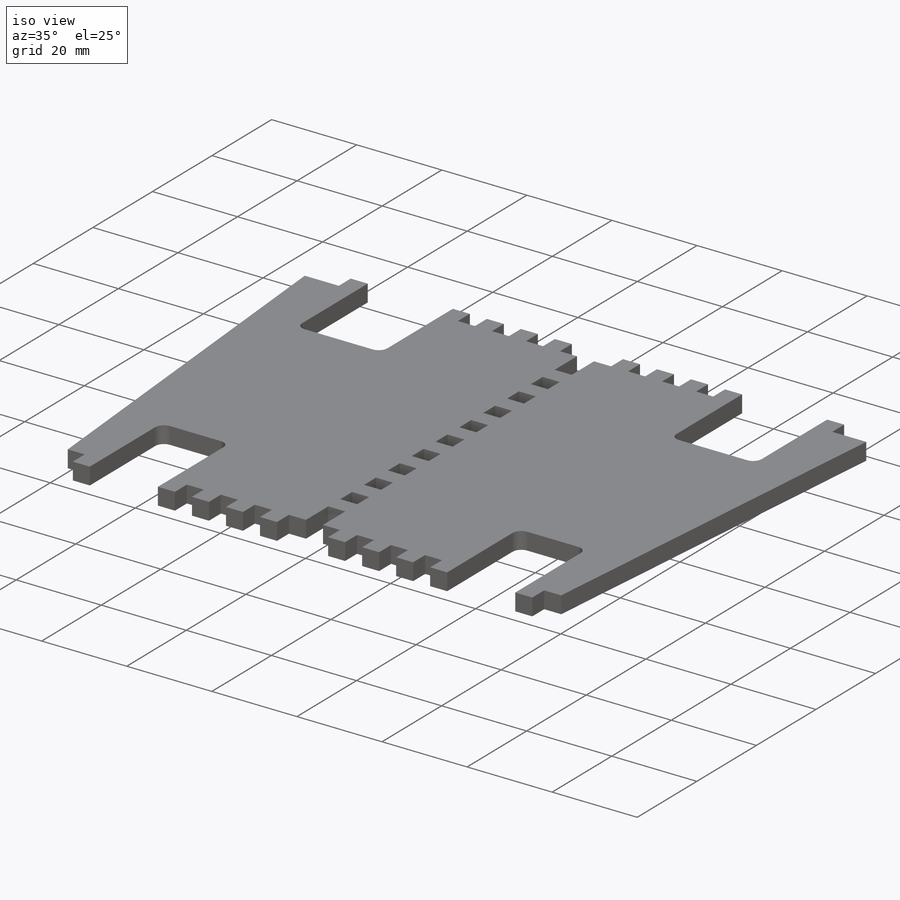
[diagram: iso view]
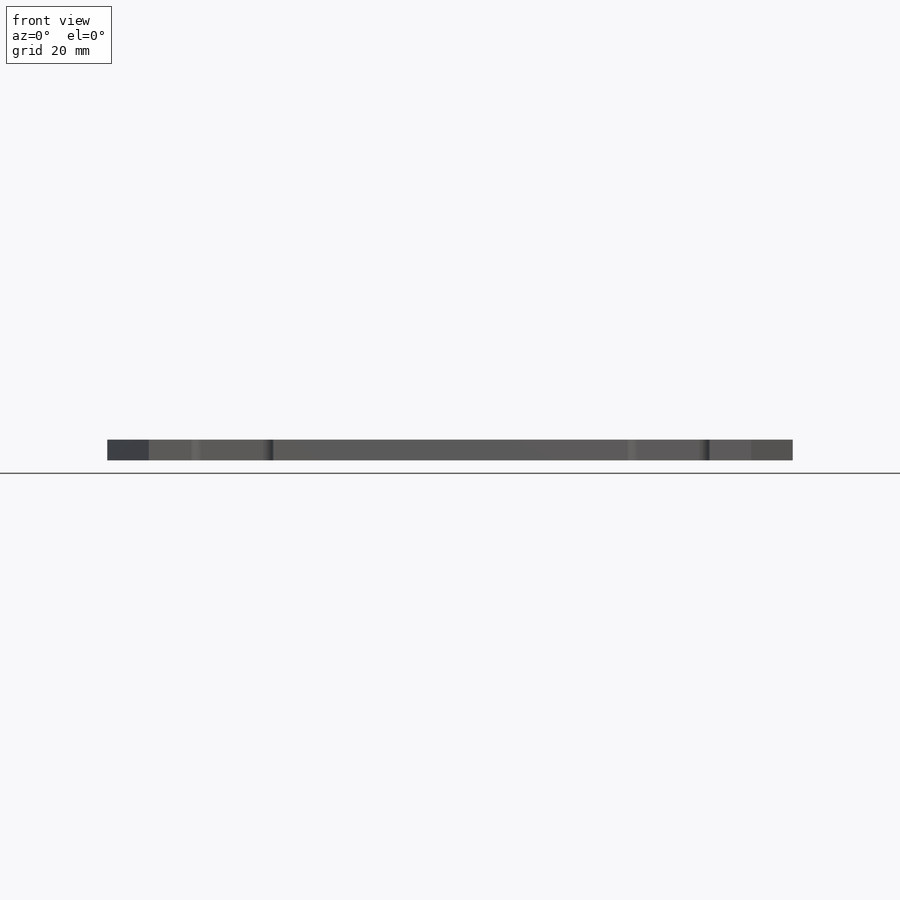
[diagram: front view]
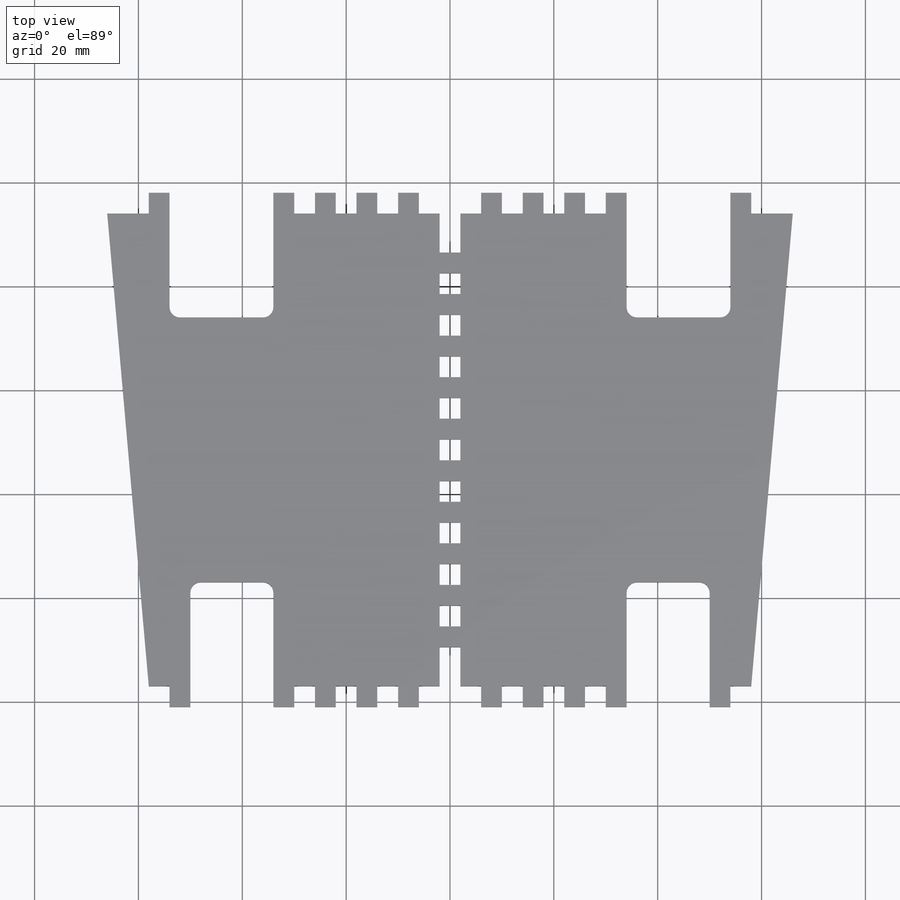
[diagram: top view]
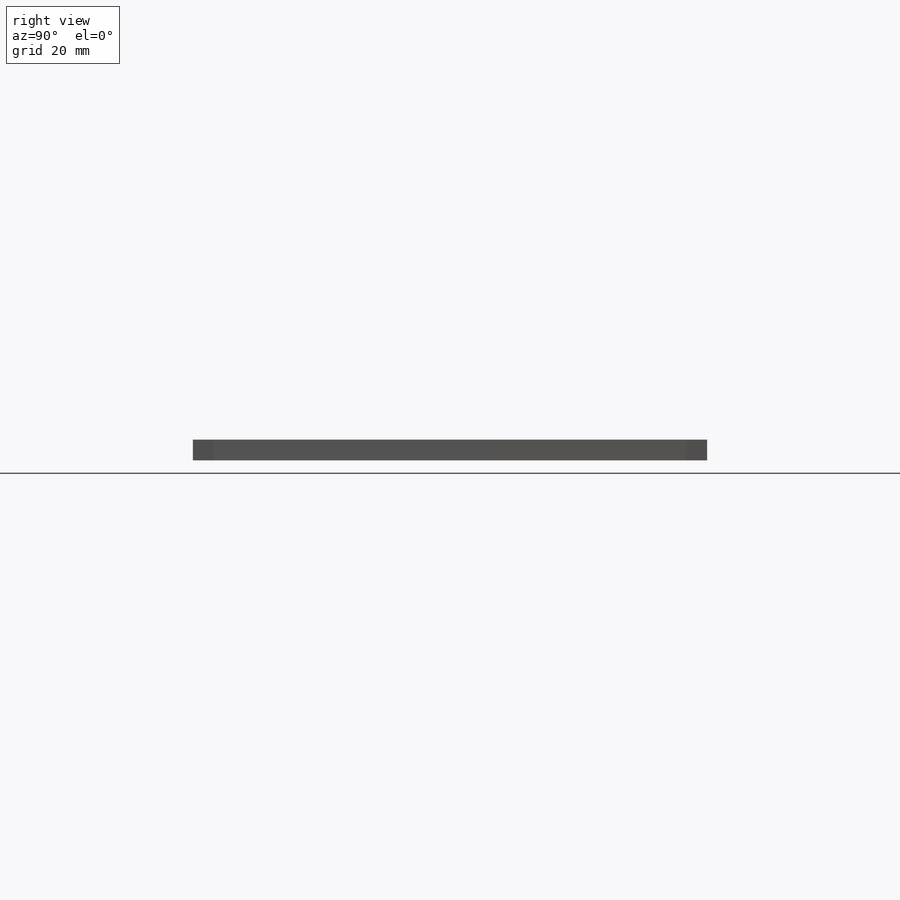
[diagram: right view]
SOLIDWORKS PART (.sldprt)
format: sldprt  version: not decoded by parser v0  size: 599,552 bytes
history: native  units: mm
features: sketch x3, extrude x2, material x1, cut_extrude x1 (+13 scaffold rows collapsed)
feature tree (20):
  scaffold x13  (default folders/planes/origin — collapsed)
  material  "Cedar"
  sketch  "Sketch1"  dims[c1.D1=91.0mm c1.D2=144.0mm c1.D3=128.0mm c1.D4=4.0mm c1.D5=~4.963505mm c2.D5=90.0deg c3.D5=4.0mm c3.D6=2.0mm c3.D8=2.0mm c3.D4=4.0mm c4.D5=2.0mm c4.D6=4.0mm c4.D7=2.0mm c4.D10=4.0mm c4.D11=4.0mm c4.D12=4.0mm c4.D13=4.0mm c5.D10=4.0mm c5.D11=4.0mm c5.D2=66.0mm c5.D14=66.0mm c5.D3=58.0mm c5.D15=58.0mm c5.D8=5.0 c5.D9=5.0]
  extrude  "Boss-Extrude1"  Depth=4mm
  sketch  "Sketch2"  dims[c1.D1=6.0mm c1.D2=4.0mm c1.D3=4.0mm c1.D4=6.0mm c1.D5=4.0mm c1.D6=4.0mm c1.D8=4.0mm c1.D9=4.0mm c1.D10=16.0mm c1.D12=16.0mm c1.D7=4.0 c2.D9=2.0 c2.D11=2.0]
  extrude  "Boss-Extrude2"  [1 undecoded]
  sketch  "Sketch3"  dims[c1.D4=2.0mm c1.D7=2.0mm c1.D1=3.0mm c1.D2=3.0mm c1.D3=20.0mm c1.D5=20.0mm c1.D6=20.0mm c2.D1=16.0mm c2.D2=16.0mm c2.D8=4.0mm]
  cut_extrude  "Cut-Extrude2"  Depth=4mm
decode coverage: 5 of 6 modeling features carry decoded parameters
note: ~ marks probable driven/reference dimensions
note: 1 parameter value undecoded
note: suppression state not decoded; provenance and decode notes live in map.json
